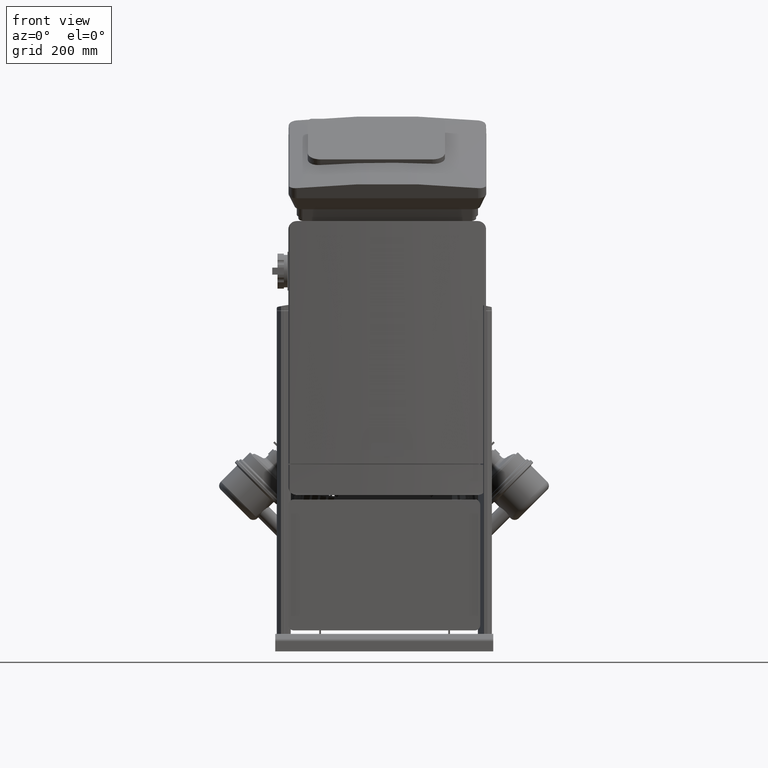
[diagram: clean part render]
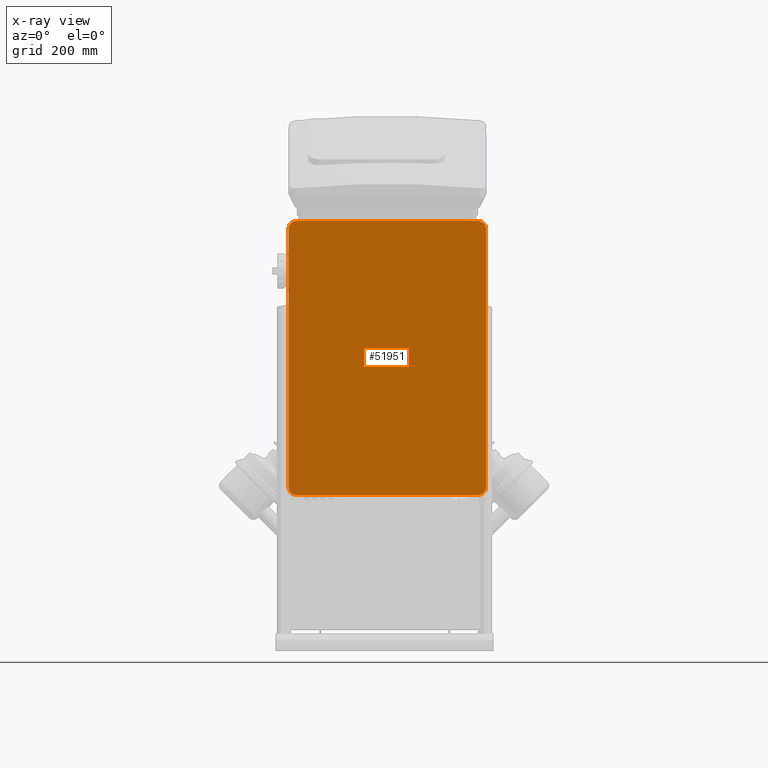
[diagram: x-ray — body ghosted, one internal face saturated and labeled with its STEP entity id]
A machine part, front view, then the same camera in x-ray: the body is ghosted and one INTERNAL B-rep face — a face not visible from any outside direction — is saturated and labeled: STEP entity #51951.
In plain terms, the highlighted planar face has unit normal (0, 1, 0).
Its self-contained STEP definition (entity closure, byte-faithful):
#51876=CARTESIAN_POINT('',(4.998836143482436,25.30963436532511,478.55169542980531));
#51877=DIRECTION('',(0.0,1.0,0.0));
#51878=DIRECTION('',(-1.0,0.0,0.0));
#51879=AXIS2_PLACEMENT_3D('',#51876,#51877,#51878);
#51880=PLANE('',#51879);
#51881=CARTESIAN_POINT('',(160.99883614348244,25.30963436532511,242.85169542980537));
#51882=VERTEX_POINT('',#51881);
#51883=CARTESIAN_POINT('',(-151.00116385651756,25.30963436532511,242.85169542980537));
#51884=VERTEX_POINT('',#51883);
#51885=CARTESIAN_POINT('',(160.99883614348244,25.30963436532511,242.85169542980537));
#51886=DIRECTION('',(-1.0,0.0,0.0));
#51887=VECTOR('',#51886,312.0);
#51888=LINE('',#51885,#51887);
#51889=EDGE_CURVE('',#51882,#51884,#51888,.T.);
#51890=ORIENTED_EDGE('',*,*,#51889,.F.);
#51891=CARTESIAN_POINT('',(174.99883614348244,25.30963436532511,256.85169542980532));
#51892=VERTEX_POINT('',#51891);
#51893=CARTESIAN_POINT('',(160.99883614348244,25.30963436532511,256.85169542980537));
#51894=DIRECTION('',(0.0,1.0,0.0));
#51895=DIRECTION('',(1.0,0.0,0.0));
#51896=AXIS2_PLACEMENT_3D('',#51893,#51894,#51895);
#51897=CIRCLE('',#51896,14.000000000000004);
#51898=EDGE_CURVE('',#51892,#51882,#51897,.T.);
#51899=ORIENTED_EDGE('',*,*,#51898,.F.);
#51900=CARTESIAN_POINT('',(174.99883614348266,25.30963436532511,700.25169542980541));
#51901=VERTEX_POINT('',#51900);
#51902=CARTESIAN_POINT('',(174.99883614348266,25.30963436532511,700.25169542980541));
#51903=DIRECTION('',(0.0,0.0,-1.0));
#51904=VECTOR('',#51903,443.40000000000009);
#51905=LINE('',#51902,#51904);
#51906=EDGE_CURVE('',#51901,#51892,#51905,.T.);
#51907=ORIENTED_EDGE('',*,*,#51906,.F.);
#51908=CARTESIAN_POINT('',(160.99883614348266,25.30963436532511,714.25169542980518));
#51909=VERTEX_POINT('',#51908);
#51910=CARTESIAN_POINT('',(160.99883614348266,25.30963436532511,700.25169542980541));
#51911=DIRECTION('',(0.0,1.0,0.0));
#51912=DIRECTION('',(0.0,0.0,1.0));
#51913=AXIS2_PLACEMENT_3D('',#51910,#51911,#51912);
#51914=CIRCLE('',#51913,13.999999999999799);
#51915=EDGE_CURVE('',#51909,#51901,#51914,.T.);
#51916=ORIENTED_EDGE('',*,*,#51915,.F.);
#51917=CARTESIAN_POINT('',(-151.00116385651734,25.30963436532511,714.2516954298053));
#51918=VERTEX_POINT('',#51917);
#51919=CARTESIAN_POINT('',(-151.00116385651734,25.30963436532511,714.2516954298053));
#51920=DIRECTION('',(1.0,0.0,0.0));
#51921=VECTOR('',#51920,311.99999999999994);
#51922=LINE('',#51919,#51921);
#51923=EDGE_CURVE('',#51918,#51909,#51922,.T.);
#51924=ORIENTED_EDGE('',*,*,#51923,.F.);
#51925=CARTESIAN_POINT('',(-165.00116385651734,25.30963436532511,700.25169542980541));
#51926=VERTEX_POINT('',#51925);
#51927=CARTESIAN_POINT('',(-151.00116385651734,25.30963436532511,700.25169542980541));
#51928=DIRECTION('',(0.0,1.0,0.0));
#51929=DIRECTION('',(-1.0,0.0,0.0));
#51930=AXIS2_PLACEMENT_3D('',#51927,#51928,#51929);
#51931=CIRCLE('',#51930,13.999999999999984);
#51932=EDGE_CURVE('',#51926,#51918,#51931,.T.);
#51933=ORIENTED_EDGE('',*,*,#51932,.F.);
#51934=CARTESIAN_POINT('',(-165.00116385651756,25.30963436532511,256.85169542980537));
#51935=VERTEX_POINT('',#51934);
#51936=CARTESIAN_POINT('',(-165.00116385651756,25.30963436532511,256.85169542980537));
#51937=DIRECTION('',(0.0,0.0,1.0));
#51938=VECTOR('',#51937,443.40000000000003);
#51939=LINE('',#51936,#51938);
#51940=EDGE_CURVE('',#51935,#51926,#51939,.T.);
#51941=ORIENTED_EDGE('',*,*,#51940,.F.);
#51942=CARTESIAN_POINT('',(-151.00116385651756,25.30963436532511,256.85169542980537));
#51943=DIRECTION('',(0.0,1.0,0.0));
#51944=DIRECTION('',(0.0,0.0,-1.0));
#51945=AXIS2_PLACEMENT_3D('',#51942,#51943,#51944);
#51946=CIRCLE('',#51945,13.999999999999996);
#51947=EDGE_CURVE('',#51884,#51935,#51946,.T.);
#51948=ORIENTED_EDGE('',*,*,#51947,.F.);
#51949=EDGE_LOOP('',(#51890,#51899,#51907,#51916,#51924,#51933,#51941,#51948));
#51950=FACE_OUTER_BOUND('',#51949,.T.);
#51951=ADVANCED_FACE('',(#51950),#51880,.F.);